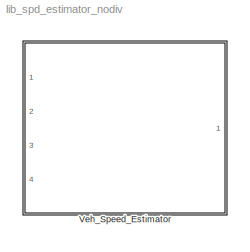
MODEL lib_spd_estimator_nodiv
KIND library
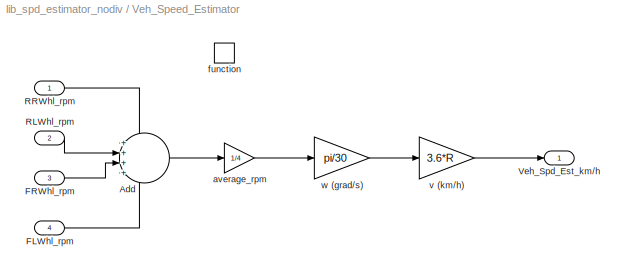
BLOCK [SubSystem] Veh_Speed_Estimator
  FunctionWithSeparateData = off
  MaskHideContents = off
  MinAlgLoopOccurrences = off
  Opaque = off
  Ports = [4, 1, 0, 1]
  PropExecContextOutsideSubsystem = off
  RTWSystemCode = Auto
  RequestExecContextInheritance = off
  SID = 1
  TreatAsAtomicUnit = on
BLOCK [Sum] Veh_Speed_Estimator/Add
  IconShape = round
  InputSameDT = off
  Inputs = ++++
  OutDataTypeStr = Inherit: Inherit via internal rule
  Ports = [4, 1]
  SID = 12
  SaturateOnIntegerOverflow = off
BLOCK [Inport] Veh_Speed_Estimator/FLWhl_rpm
  IconDisplay = Port number
  Port = 4
  SID = 11
BLOCK [Inport] Veh_Speed_Estimator/FRWhl_rpm
  IconDisplay = Port number
  Port = 3
  SID = 10
BLOCK [Inport] Veh_Speed_Estimator/RLWhl_rpm
  IconDisplay = Port number
  Port = 2
  SID = 9
BLOCK [Inport] Veh_Speed_Estimator/RRWhl_rpm
  IconDisplay = Port number
  SID = 8
BLOCK [Outport] Veh_Speed_Estimator/Veh_Spd_Est_km//h
  IconDisplay = Port number
  SID = 16
BLOCK [Gain] Veh_Speed_Estimator/average_rpm
  Gain = 1/4
  OutDataTypeStr = double
  OutMax = 2000
  OutMin = 0
  ParamDataTypeStr = Inherit: Inherit via internal rule
  SID = 13
  SaturateOnIntegerOverflow = off
BLOCK [TriggerPort] Veh_Speed_Estimator/function
  Ports = []
  SID = 3
  StatesWhenEnabling = held
  TriggerType = function-call
BLOCK [Gain] Veh_Speed_Estimator/v (km//h)
  Gain = 3.6*R
  OutDataTypeStr = Inherit: Inherit via internal rule
  OutMax = 200
  OutMin = 0
  ParamDataTypeStr = Inherit: Inherit via internal rule
  SID = 14
  SaturateOnIntegerOverflow = off
BLOCK [Gain] Veh_Speed_Estimator/w (grad//s)
  Gain = pi/30
  OutDataTypeStr = Inherit: Inherit via internal rule
  OutMax = 250
  OutMin = 0
  ParamDataTypeStr = Inherit: Inherit via internal rule
  SID = 15
  SaturateOnIntegerOverflow = off
LINE Veh_Speed_Estimator/Add:1 -> Veh_Speed_Estimator/average_rpm:1
LINE Veh_Speed_Estimator/FLWhl_rpm:1 -> Veh_Speed_Estimator/Add:4
LINE Veh_Speed_Estimator/FRWhl_rpm:1 -> Veh_Speed_Estimator/Add:3
LINE Veh_Speed_Estimator/RLWhl_rpm:1 -> Veh_Speed_Estimator/Add:2
LINE Veh_Speed_Estimator/RRWhl_rpm:1 -> Veh_Speed_Estimator/Add:1
LINE Veh_Speed_Estimator/average_rpm:1 -> Veh_Speed_Estimator/w (grad//s):1
LINE Veh_Speed_Estimator/v (km//h):1 -> Veh_Speed_Estimator/Veh_Spd_Est_km//h:1
LINE Veh_Speed_Estimator/w (grad//s):1 -> Veh_Speed_Estimator/v (km//h):1
